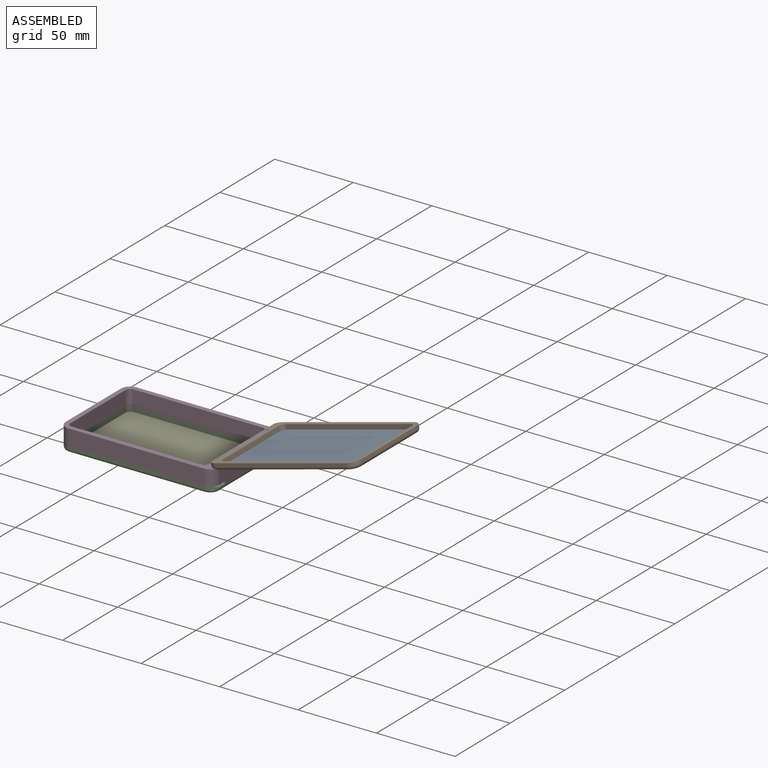
[diagram: assembled view]
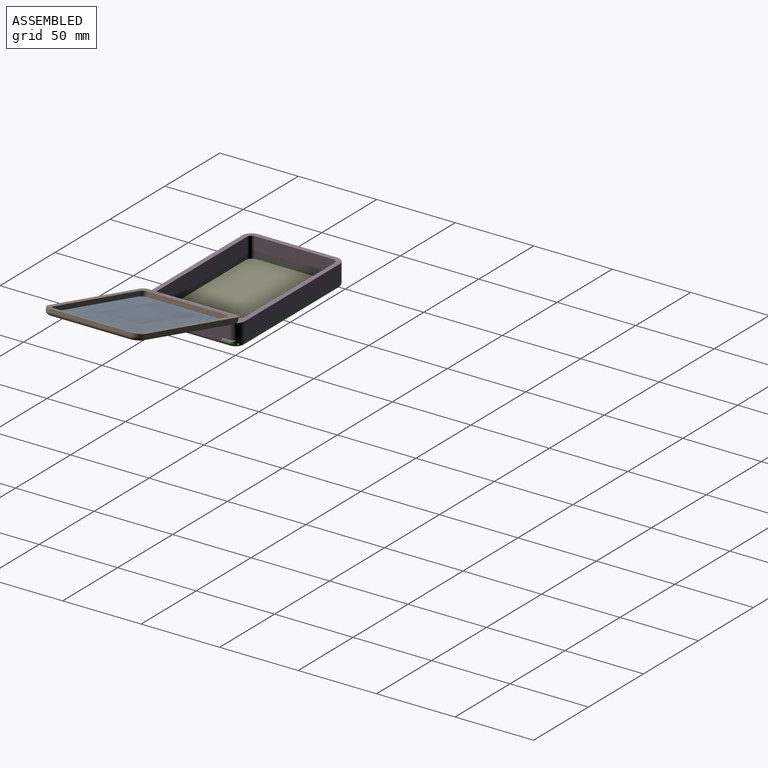
[diagram: assembled view, second angle]
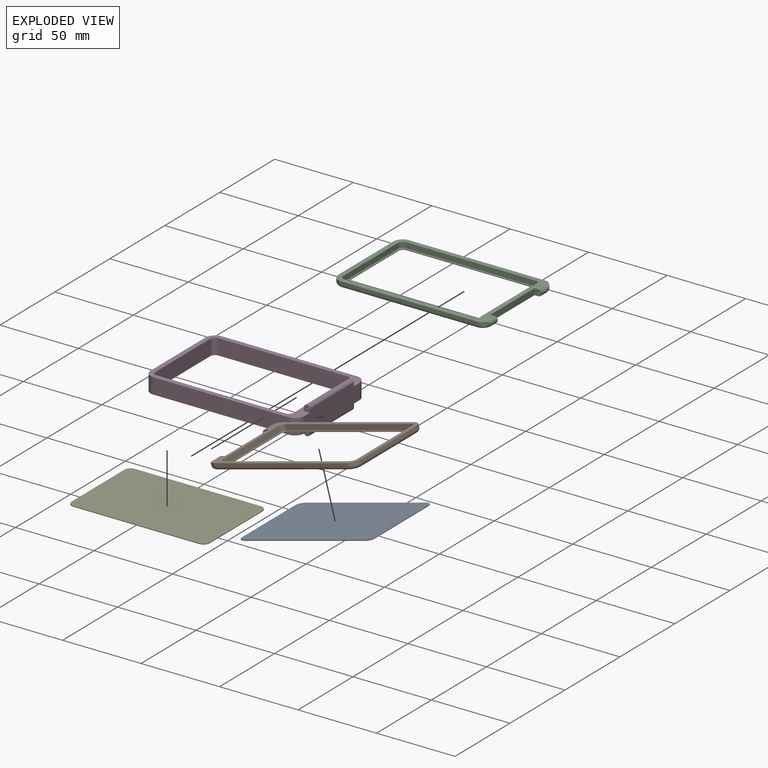
[diagram: exploded view]
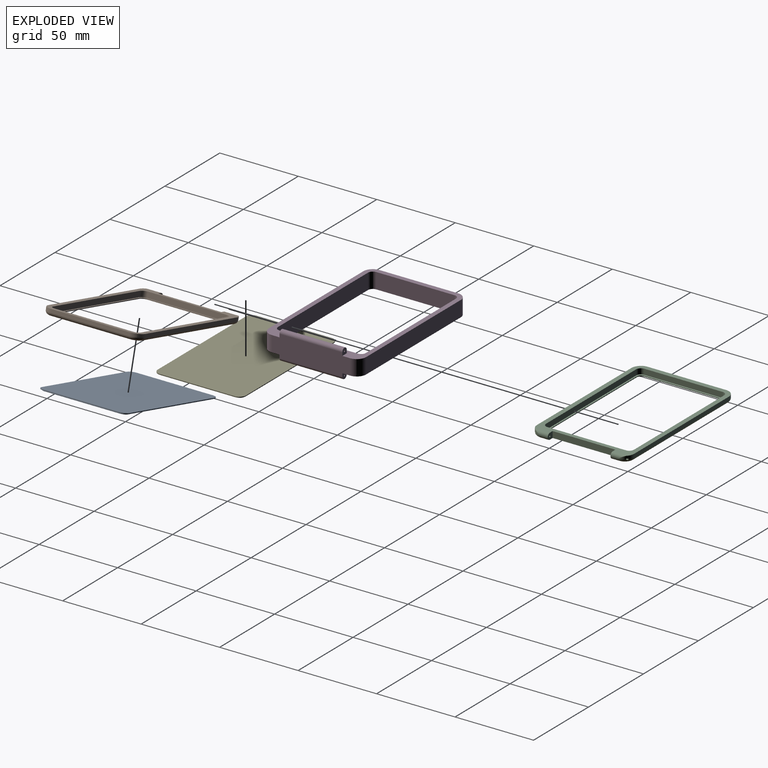
[diagram: exploded view, second angle]
ASSEMBLY  parts=5 mates=4
PART A: 19 faces, bbox 88x56x1 mm
  f0: cylinder r=3mm len=3mm, axis (0,0,-1), area 2.4mm2, adj f1,f7,f8,f18
  f1: plane 48x0.5mm, normal (-1,0,0), area 24mm2, adj f0,f2,f8,f18
  f2: cylinder r=3mm len=3mm, axis (0,0,-1), area 2.4mm2, adj f1,f3,f8,f18
  f3: plane 80x0.5mm, normal (0,-1,0), area 40mm2, adj f2,f4,f8,f18
  f4: cylinder r=3mm len=3mm, axis (0,0,-1), area 2.4mm2, adj f3,f5,f8,f18
  f5: plane 48x0.5mm, normal (1,0,0), area 24mm2, adj f4,f6,f8,f18
  f6: cylinder r=3mm len=3mm, axis (0,0,-1), area 2.4mm2, adj f5,f7,f8,f18
  f7: plane 80x0.5mm, normal (0,1,0), area 40mm2, adj f0,f6,f8,f18
  f8: plane 86x54mm, normal (0,0,1), area 4636.3mm2, adj f0,f1,f2,f3,f4,f5,f6,f7
  f9: cylinder r=4mm len=4mm, axis (0,0,1), area 3.1mm2, adj f10,f16,f17,f18
  f10: plane 48x0.5mm, normal (1,0,0), area 24mm2, adj f9,f11,f17,f18
  f11: cylinder r=4mm len=4mm, axis (0,0,1), area 3.1mm2, adj f10,f12,f17,f18
  f12: plane 80x0.5mm, normal (0,1,0), area 40mm2, adj f11,f13,f17,f18
  f13: cylinder r=4mm len=4mm, axis (0,0,1), area 3.1mm2, adj f12,f14,f17,f18
  f14: plane 48x0.5mm, normal (-1,0,0), area 24mm2, adj f13,f15,f17,f18
  f15: cylinder r=4mm len=4mm, axis (0,0,1), area 3.1mm2, adj f14,f16,f17,f18
  f16: plane 80x0.5mm, normal (0,-1,0), area 40mm2, adj f9,f15,f17,f18
  f17: plane 88x56mm, normal (0,0,-1), area 4914.3mm2, adj f9,f10,f11,f12,f13,f14,f15,f16
  f18: plane 88x56mm, normal (0,0,1), area 278mm2, adj f0,f1,f2,f3,f4,f5,f6,f7
PART B: 40 faces, bbox 99x63x4 mm
  f0: plane 96x62mm, normal (0,0,-1), area 912.4mm2, adj f1,f10,f11,f12,f13,f14,f15,f16
  f1: cylinder r=2mm len=9.47mm, axis (0,-1,0), area 39.2mm2, adj f0,f10,f17,f33,f35
  f2: plane 80x0.5mm, normal (0,-1,0), area 40mm2, adj f3,f9,f17,f26
  f3: cylinder r=3mm len=3mm, axis (0,0,1), area 2.4mm2, adj f2,f4,f17,f26
  f4: plane 48x0.5mm, normal (1,0,0), area 24mm2, adj f3,f5,f17,f26
  f5: cylinder r=3mm len=3mm, axis (0,0,1), area 2.4mm2, adj f4,f6,f17,f26
  f6: plane 80x0.5mm, normal (0,1,0), area 40mm2, adj f5,f7,f17,f26
  f7: cylinder r=3mm len=3mm, axis (0,0,1), area 2.4mm2, adj f6,f8,f17,f26
  f8: plane 48x0.5mm, normal (-1,0,0), area 24mm2, adj f7,f9,f17,f26
  f9: cylinder r=3mm len=3mm, axis (0,0,1), area 2.4mm2, adj f2,f8,f17,f26
  f10: cylinder r=6mm len=6mm, axis (0,0,-1), area 14.5mm2, adj f0,f1,f16,f33,f39
  f11: cylinder r=6mm len=6mm, axis (0,0,-1), area 14.5mm2, adj f0,f12,f32,f34,f38
  f12: plane 86x2mm, normal (0,1,0), area 172mm2, adj f0,f11,f13,f30
  f13: cylinder r=6mm len=6mm, axis (0,0,-1), area 18.8mm2, adj f0,f12,f14,f28
  f14: plane 50x2mm, normal (-1,0,0), area 100mm2, adj f0,f13,f15,f27
  f15: cylinder r=6mm len=6mm, axis (0,0,-1), area 18.8mm2, adj f0,f14,f16,f29
  f16: plane 86x2mm, normal (0,-1,0), area 172mm2, adj f0,f10,f15,f31
  f17: plane 94x58mm, normal (0,0,1), area 702mm2, adj f1,f2,f3,f4,f5,f6,f7,f8
  f18: plane 82x3.5mm, normal (0,1,0), area 287mm2, adj f0,f19,f25,f26
  f19: cylinder r=3mm len=3.5mm, axis (0,0,-1), area 16.5mm2, adj f0,f18,f20,f26
  f20: plane 50x3.5mm, normal (1,0,0), area 175mm2, adj f0,f19,f21,f26
  f21: cylinder r=3mm len=3.5mm, axis (0,0,-1), area 16.5mm2, adj f0,f20,f22,f26
  f22: plane 82x3.5mm, normal (0,-1,0), area 287mm2, adj f0,f21,f23,f26
  f23: cylinder r=3mm len=3.5mm, axis (0,0,-1), area 16.5mm2, adj f0,f22,f24,f26
  f24: plane 50x3.5mm, normal (-1,0,0), area 175mm2, adj f0,f23,f25,f26
  f25: cylinder r=3mm len=3.5mm, axis (0,0,-1), area 16.5mm2, adj f0,f18,f24,f26
  f26: plane 88x56mm, normal (0,0,-1), area 284mm2, adj f2,f3,f4,f5,f6,f7,f8,f9
  f27: cylinder r=2mm len=50mm, axis (0,1,0), area 157.1mm2, adj f14,f17,f28,f29
  f28: torus R=4mm, axis (0,0,1), area 26mm2, adj f13,f17,f27,f30
  f29: torus R=4mm, axis (0,0,1), area 26mm2, adj f15,f17,f27,f31
  f30: cylinder r=2mm len=86mm, axis (1,0,0), area 270.2mm2, adj f12,f17,f28,f32
  f31: cylinder r=2mm len=86mm, axis (-1,0,0), area 270.2mm2, adj f16,f17,f29,f33
  f32: torus R=4mm, axis (0,0,1), area 25.5mm2, adj f11,f17,f30,f34,f38
  f33: torus R=4mm, axis (0,0,1), area 25.5mm2, adj f1,f10,f17,f31,f39
  f34: cylinder r=2mm len=9.47mm, axis (0,-1,0), area 39.2mm2, adj f0,f11,f17,f32,f37
  f35: plane 4.5x4mm, normal (0,1,0), area 15.5mm2, adj f0,f1,f17,f36,f39
  f36: plane 40x4mm, normal (1,0,0), area 160mm2, adj f0,f17,f35,f37
  f37: plane 4.5x4mm, normal (0,-1,0), area 15.5mm2, adj f0,f17,f34,f36,f38
  f38: cylinder r=0.5mm len=9.87mm, axis (0,-1,0), area 29.6mm2, adj f11,f32,f37
  f39: cylinder r=0.5mm len=9.87mm, axis (0,-1,0), area 29.6mm2, adj f10,f33,f35
PART C: same geometry as B
PART D: 28 faces, bbox 98x62x18 mm
  f0: plane 98x62mm, normal (0,0,1), area 964.8mm2, adj f2,f3,f4,f5,f6,f7,f8,f9
  f1: plane 98x62mm, normal (0,0,-1), area 964.8mm2, adj f2,f3,f4,f5,f6,f7,f8,f9
  f2: cylinder r=6mm len=10mm, axis (0,0,-1), area 94.2mm2, adj f0,f1,f3,f9
  f3: plane 50x14mm, normal (1,0,0), area 660mm2, adj f0,f1,f2,f4,f18,f20,f21,f23
  f4: cylinder r=6mm len=10mm, axis (0,0,-1), area 94.2mm2, adj f0,f1,f3,f5
  f5: plane 86x10mm, normal (0,1,0), area 860mm2, adj f0,f1,f4,f6
  f6: cylinder r=6mm len=10mm, axis (0,0,-1), area 94.2mm2, adj f0,f1,f5,f7
  f7: plane 50x10mm, normal (-1,0,0), area 500mm2, adj f0,f1,f6,f8
  f8: cylinder r=6mm len=10mm, axis (0,0,-1), area 94.2mm2, adj f0,f1,f7,f9
  f9: plane 86x10mm, normal (0,-1,0), area 860mm2, adj f0,f1,f2,f8
  f10: plane 82x10mm, normal (0,-1,0), area 820mm2, adj f0,f1,f11,f17
  f11: cylinder r=3mm len=10mm, axis (0,0,1), area 47.1mm2, adj f0,f1,f10,f12
  f12: plane 50x10mm, normal (1,0,0), area 500mm2, adj f0,f1,f11,f13
  f13: cylinder r=3mm len=10mm, axis (0,0,1), area 47.1mm2, adj f0,f1,f12,f14
  f14: plane 82x10mm, normal (0,1,0), area 820mm2, adj f0,f1,f13,f15
  f15: cylinder r=3mm len=10mm, axis (0,0,1), area 47.1mm2, adj f0,f1,f14,f16
  f16: plane 50x10mm, normal (-1,0,0), area 500mm2, adj f0,f1,f15,f17
  f17: cylinder r=3mm len=10mm, axis (0,0,1), area 47.1mm2, adj f0,f1,f10,f16
  f18: plane 4x4mm, normal (0,-1,0), area 13.5mm2, adj f1,f3,f19,f24,f27
  f19: plane 40x2mm, normal (-1,0,0), area 80mm2, adj f1,f18,f20,f24
  f20: plane 4x4mm, normal (0,1,0), area 13.5mm2, adj f1,f3,f19,f24,f27
  f21: plane 4x4mm, normal (0,1,0), area 13.5mm2, adj f0,f3,f22,f25,f26
  f22: plane 40x2mm, normal (-1,0,0), area 80mm2, adj f0,f21,f23,f25
  f23: plane 4x4mm, normal (0,-1,0), area 13.5mm2, adj f0,f3,f22,f25,f26
  f24: cylinder r=2mm len=40mm, axis (0,1,0), area 251.3mm2, adj f3,f18,f19,f20
  f25: cylinder r=2mm len=40mm, axis (0,-1,0), area 251.3mm2, adj f3,f21,f22,f23
  f26: cylinder r=0.5mm len=40mm, axis (0,1,0), area 125.7mm2, adj f21,f23
  f27: cylinder r=0.5mm len=40mm, axis (0,1,0), area 125.7mm2, adj f18,f20
PART E: same geometry as A
PLACE A rot(axis=(0,1,0),165deg) t=(51.35,9.89,-36.43)mm
PLACE B rot(axis=(0,1,0),165deg) t=(51.22,9.89,-35.95)mm
PLACE C rot(axis=(1,0,0),180deg) t=(-45.37,9.89,-62.67)mm
PLACE D t=(-45.37,9.89,-59.67)mm
PLACE E rot(axis=(1,0,0),180deg) t=(-45.37,9.89,-63.17)mm
MATE revolute B.f1 <-> D.f25  axis (0,-1,0) through (3.63,29.89,-47.67)mm
MATE revolute C.f1 <-> D.f24  axis (0,1,0) through (3.63,-10.11,-61.67)mm
MATE fastened E.f18 <-> C.f26  axis (0,0,-1) through (-5.37,36.89,-63.17)mm
MATE fastened A.f8 <-> B.f17  axis (0.26,0,-0.97) through (90.11,36.89,-26.57)mm
